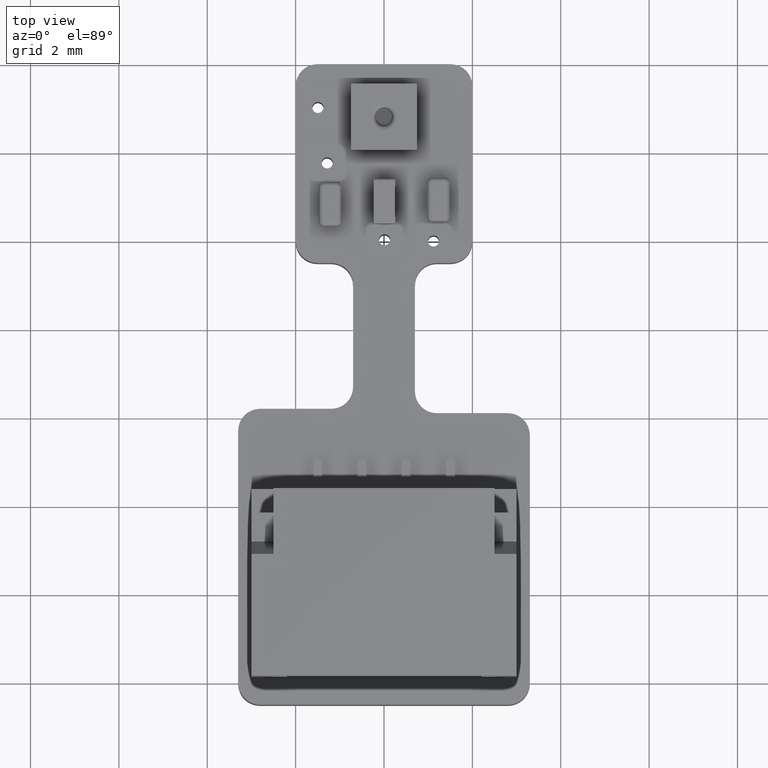
[diagram: clean part render]
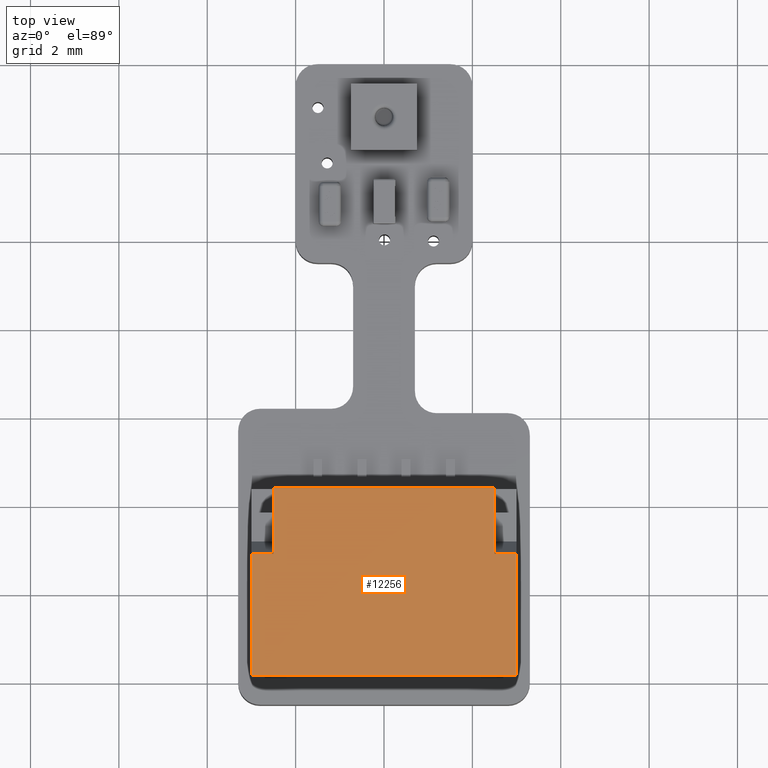
[diagram: same view with one face highlighted and labeled with its STEP entity id]
A machine part, top view. The second image highlights one B-rep face of the part: STEP entity #12256.
In plain terms, the highlighted planar face has unit normal (-0, 0, -1).
Its self-contained STEP definition (entity closure, byte-faithful):
#11537 = VERTEX_POINT('',#11538);
#11538 = CARTESIAN_POINT('',(3.,3.255,3.895));
#11544 = EDGE_CURVE('',#11545,#11537,#11547,.T.);
#11545 = VERTEX_POINT('',#11546);
#11546 = CARTESIAN_POINT('',(-3.,3.255,3.895));
#11547 = LINE('',#11548,#11549);
#11548 = CARTESIAN_POINT('',(-3.,3.255,3.895));
#11549 = VECTOR('',#11550,1.);
#11550 = DIRECTION('',(1.,5.047298460416E-031,-7.127527011883E-015));
#11915 = EDGE_CURVE('',#11916,#11545,#11918,.T.);
#11916 = VERTEX_POINT('',#11917);
#11917 = CARTESIAN_POINT('',(-3.,3.255,1.133675134595));
#11918 = LINE('',#11919,#11920);
#11919 = CARTESIAN_POINT('',(-3.,3.255,-0.355));
#11920 = VECTOR('',#11921,1.);
#11921 = DIRECTION('',(6.982966722219E-015,-3.491483361109E-015,1.));
#12256 = ADVANCED_FACE('',(#12257),#12307,.F.);
#12257 = FACE_BOUND('',#12258,.T.);
#12258 = EDGE_LOOP('',(#12259,#12267,#12268,#12269,#12277,#12285,#12293,
    #12301));
#12259 = ORIENTED_EDGE('',*,*,#12260,.T.);
#12260 = EDGE_CURVE('',#12261,#11916,#12263,.T.);
#12261 = VERTEX_POINT('',#12262);
#12262 = CARTESIAN_POINT('',(-2.5,3.255,1.133675134595));
#12263 = LINE('',#12264,#12265);
#12264 = CARTESIAN_POINT('',(-2.5,3.255,1.133675134595));
#12265 = VECTOR('',#12266,1.);
#12266 = DIRECTION('',(-1.,0.E+000,6.982966722219E-015));
#12267 = ORIENTED_EDGE('',*,*,#11915,.T.);
#12268 = ORIENTED_EDGE('',*,*,#11544,.T.);
#12269 = ORIENTED_EDGE('',*,*,#12270,.T.);
#12270 = EDGE_CURVE('',#11537,#12271,#12273,.T.);
#12271 = VERTEX_POINT('',#12272);
#12272 = CARTESIAN_POINT('',(3.,3.255,1.133675134595));
#12273 = LINE('',#12274,#12275);
#12274 = CARTESIAN_POINT('',(3.,3.255,-0.355));
#12275 = VECTOR('',#12276,1.);
#12276 = DIRECTION('',(-7.18705183704E-015,3.491483361109E-015,-1.));
#12277 = ORIENTED_EDGE('',*,*,#12278,.F.);
#12278 = EDGE_CURVE('',#12279,#12271,#12281,.T.);
#12279 = VERTEX_POINT('',#12280);
#12280 = CARTESIAN_POINT('',(2.5,3.255,1.133675134595));
#12281 = LINE('',#12282,#12283);
#12282 = CARTESIAN_POINT('',(2.5,3.255,1.133675134595));
#12283 = VECTOR('',#12284,1.);
#12284 = DIRECTION('',(1.,0.E+000,-6.982966722219E-015));
#12285 = ORIENTED_EDGE('',*,*,#12286,.F.);
#12286 = EDGE_CURVE('',#12287,#12279,#12289,.T.);
#12287 = VERTEX_POINT('',#12288);
#12288 = CARTESIAN_POINT('',(2.5,3.255,-0.355));
#12289 = LINE('',#12290,#12291);
#12290 = CARTESIAN_POINT('',(2.5,3.255,0.195));
#12291 = VECTOR('',#12292,1.);
#12292 = DIRECTION('',(6.982966722219E-015,-3.491483361109E-015,1.));
#12293 = ORIENTED_EDGE('',*,*,#12294,.T.);
#12294 = EDGE_CURVE('',#12287,#12295,#12297,.T.);
#12295 = VERTEX_POINT('',#12296);
#12296 = CARTESIAN_POINT('',(-2.5,3.255,-0.355));
#12297 = LINE('',#12298,#12299);
#12298 = CARTESIAN_POINT('',(3.,3.255,-0.355));
#12299 = VECTOR('',#12300,1.);
#12300 = DIRECTION('',(-1.,-4.27569270828E-031,7.105427357601E-015));
#12301 = ORIENTED_EDGE('',*,*,#12302,.T.);
#12302 = EDGE_CURVE('',#12295,#12261,#12303,.T.);
#12303 = LINE('',#12304,#12305);
#12304 = CARTESIAN_POINT('',(-2.5,3.255,1.133675134595));
#12305 = VECTOR('',#12306,1.);
#12306 = DIRECTION('',(6.982966722219E-015,-3.491483361109E-015,1.));
#12307 = PLANE('',#12308);
#12308 = AXIS2_PLACEMENT_3D('',#12309,#12310,#12311);
#12309 = CARTESIAN_POINT('',(-3.,3.255,-0.355));
#12310 = DIRECTION('',(-2.438091212181E-029,-1.,-3.491483361109E-015));
#12311 = DIRECTION('',(1.,2.80259692865E-045,-6.982966722219E-015));